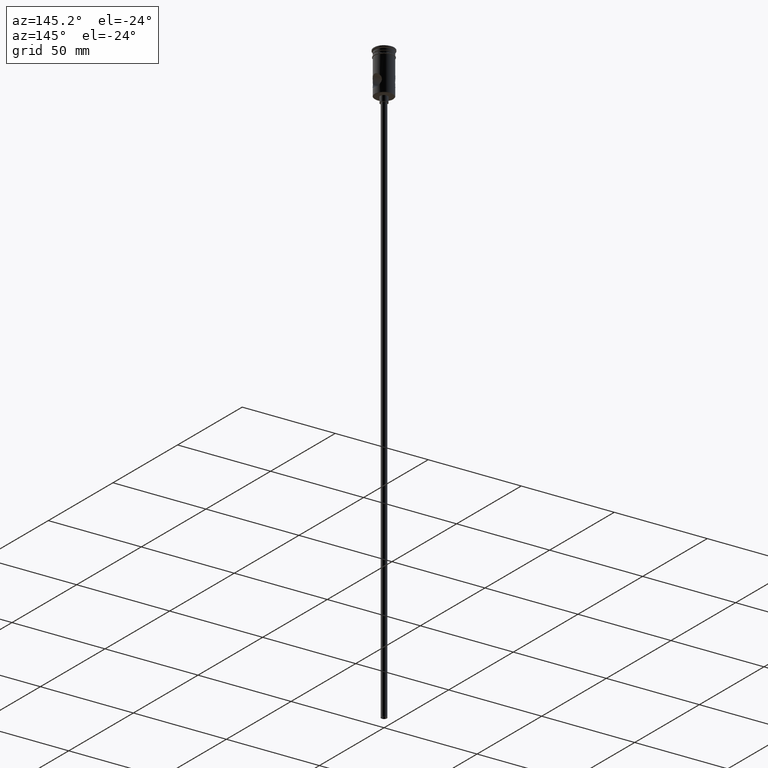
[diagram: clean part render]
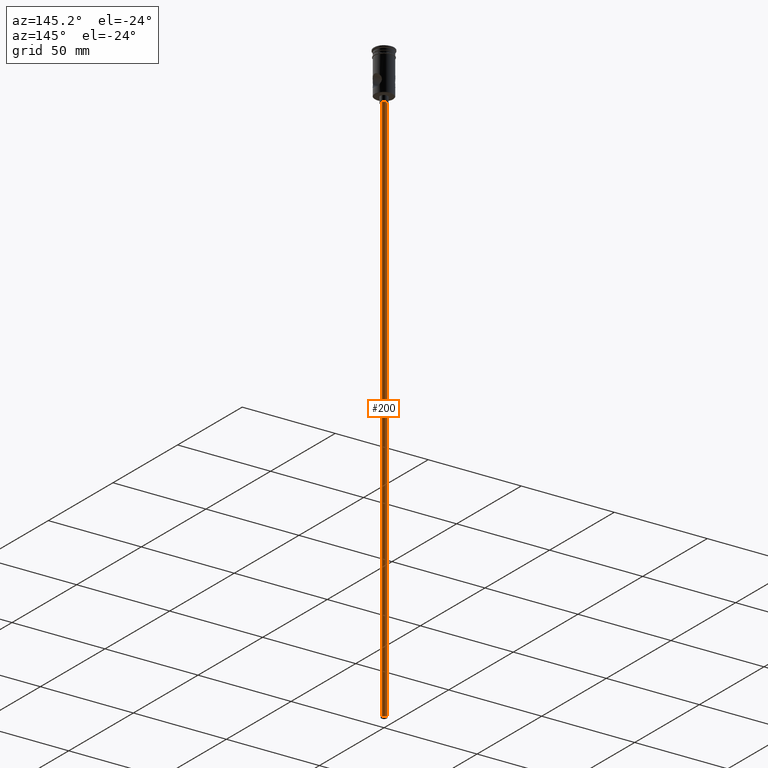
[diagram: same view with one face highlighted and labeled with its STEP entity id]
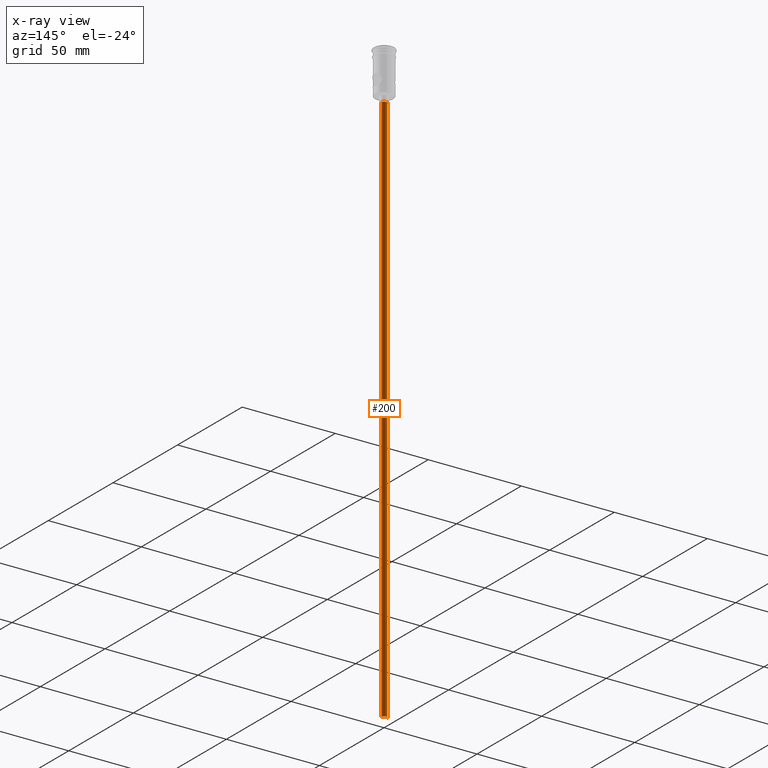
[diagram: x-ray of the same camera — body ghosted, the highlighted face saturated]
A machine part, auxiliary view. The second image highlights one B-rep face of the part: STEP entity #200.
The next image is the same camera in x-ray: the body ghosted, the highlighted face saturated — about 0% of this face is hidden behind the body in this view.
In plain terms, the highlighted cylindrical surface (edge-blend (fillet) strip) has radius 1.5 mm, axis along (-0, -0, 1).
Its self-contained STEP definition (entity closure, byte-faithful):
#15 = VERTEX_POINT ( 'NONE', #261 ) ;
#44 = DIRECTION ( 'NONE',  ( -1.000000000000000000, 0.000000000000000000, 0.000000000000000000 ) ) ;
#48 = EDGE_CURVE ( 'NONE', #1193, #15, #82, .T. ) ;
#82 = LINE ( 'NONE', #1063, #249 ) ;
#89 = CARTESIAN_POINT ( 'NONE',  ( 0.000000000000000000, 0.000000000000000000, -322.5000000000000000 ) ) ;
#133 = AXIS2_PLACEMENT_3D ( 'NONE', #193, #316, #884 ) ;
#155 = VERTEX_POINT ( 'NONE', #182 ) ;
#182 = CARTESIAN_POINT ( 'NONE',  ( -1.500000000000000222, 1.836970198721030181E-16, -322.5000000000000000 ) ) ;
#193 = CARTESIAN_POINT ( 'NONE',  ( 0.000000000000000000, 0.000000000000000000, -322.5000000000000000 ) ) ;
#200 = ADVANCED_FACE ( 'NONE', ( #1205 ), #642, .T. ) ;
#217 = DIRECTION ( 'NONE',  ( 0.000000000000000000, 0.000000000000000000, -1.000000000000000000 ) ) ;
#228 = EDGE_CURVE ( 'NONE', #155, #1193, #1325, .T. ) ;
#242 = DIRECTION ( 'NONE',  ( 0.000000000000000000, 0.000000000000000000, -1.000000000000000000 ) ) ;
#249 = VECTOR ( 'NONE', #519, 1000.000000000000000 ) ;
#261 = CARTESIAN_POINT ( 'NONE',  ( 1.500000000000000222, 0.000000000000000000, -25.50000000000000000 ) ) ;
#289 = EDGE_CURVE ( 'NONE', #155, #1115, #548, .T. ) ;
#316 = DIRECTION ( 'NONE',  ( -0.000000000000000000, -0.000000000000000000, 1.000000000000000000 ) ) ;
#338 = ORIENTED_EDGE ( 'NONE', *, *, #228, .F. ) ;
#470 = CARTESIAN_POINT ( 'NONE',  ( 0.000000000000000000, 0.000000000000000000, -25.50000000000000000 ) ) ;
#490 = AXIS2_PLACEMENT_3D ( 'NONE', #470, #242, #44 ) ;
#519 = DIRECTION ( 'NONE',  ( -0.000000000000000000, -0.000000000000000000, 1.000000000000000000 ) ) ;
#548 = LINE ( 'NONE', #1411, #744 ) ;
#642 = CYLINDRICAL_SURFACE ( 'NONE', #133, 1.500000000000000222 ) ;
#653 = DIRECTION ( 'NONE',  ( -1.000000000000000000, 0.000000000000000000, 0.000000000000000000 ) ) ;
#667 = EDGE_CURVE ( 'NONE', #1115, #15, #1162, .T. ) ;
#744 = VECTOR ( 'NONE', #990, 1000.000000000000000 ) ;
#872 = EDGE_LOOP ( 'NONE', ( #338, #1218, #988, #1219 ) ) ;
#884 = DIRECTION ( 'NONE',  ( 1.000000000000000000, 0.000000000000000000, 0.000000000000000000 ) ) ;
#988 = ORIENTED_EDGE ( 'NONE', *, *, #667, .T. ) ;
#990 = DIRECTION ( 'NONE',  ( -0.000000000000000000, -0.000000000000000000, 1.000000000000000000 ) ) ;
#1063 = CARTESIAN_POINT ( 'NONE',  ( 1.500000000000000222, 0.000000000000000000, -322.5000000000000000 ) ) ;
#1115 = VERTEX_POINT ( 'NONE', #1317 ) ;
#1162 = CIRCLE ( 'NONE', #490, 1.500000000000000222 ) ;
#1193 = VERTEX_POINT ( 'NONE', #1323 ) ;
#1205 = FACE_OUTER_BOUND ( 'NONE', #872, .T. ) ;
#1218 = ORIENTED_EDGE ( 'NONE', *, *, #289, .T. ) ;
#1219 = ORIENTED_EDGE ( 'NONE', *, *, #48, .F. ) ;
#1251 = AXIS2_PLACEMENT_3D ( 'NONE', #89, #217, #653 ) ;
#1317 = CARTESIAN_POINT ( 'NONE',  ( -1.500000000000000222, 1.836970198721030181E-16, -25.50000000000000000 ) ) ;
#1323 = CARTESIAN_POINT ( 'NONE',  ( 1.500000000000000222, 0.000000000000000000, -322.5000000000000000 ) ) ;
#1325 = CIRCLE ( 'NONE', #1251, 1.500000000000000222 ) ;
#1411 = CARTESIAN_POINT ( 'NONE',  ( -1.500000000000000222, 1.836970198721030181E-16, -322.5000000000000000 ) ) ;